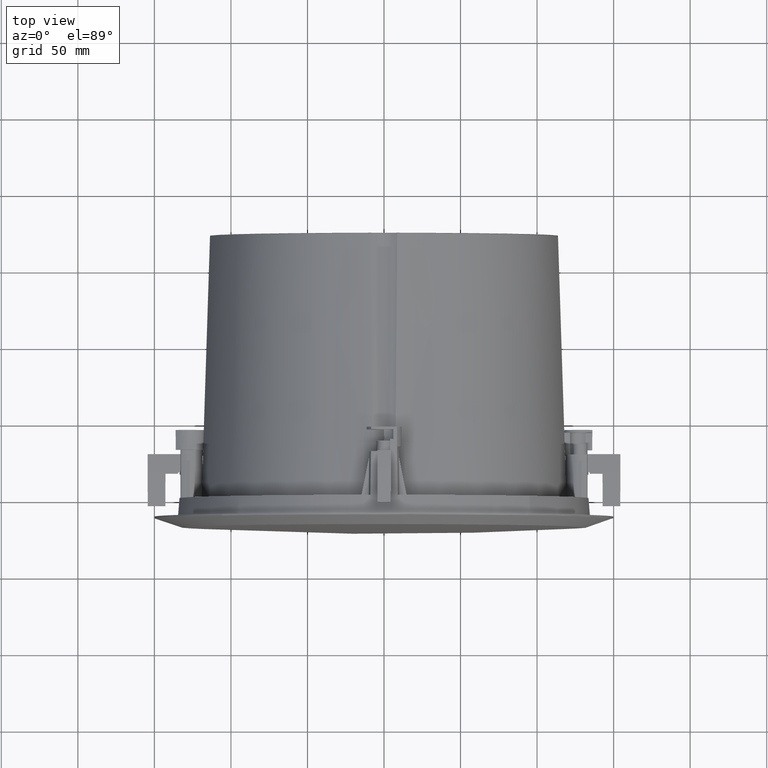
[diagram: clean part render]
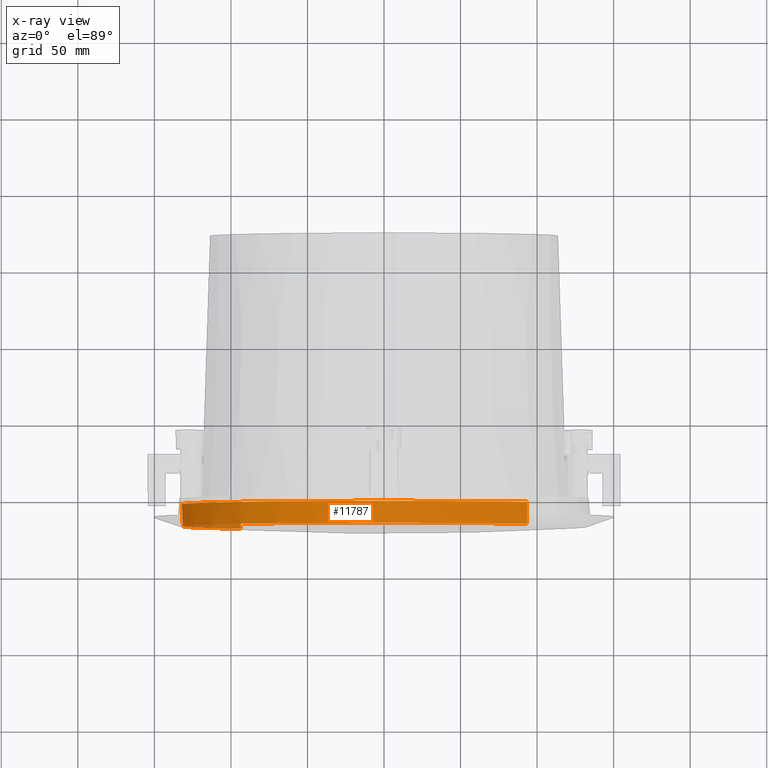
[diagram: x-ray — body ghosted, one internal face saturated and labeled with its STEP entity id]
A machine part, top view, then the same camera in x-ray: the body is ghosted and one INTERNAL B-rep face — a face not visible from any outside direction — is saturated and labeled: STEP entity #11787.
In plain terms, the highlighted conical surface has half-angle 1 deg.
Its self-contained STEP definition (entity closure, byte-faithful):
#697 = CARTESIAN_POINT ( 'NONE',  ( -9.718417500650439001E-15, -18.35651566236838761, -9.718417500650439001E-15 ) ) ;
#1596 = ORIENTED_EDGE ( 'NONE', *, *, #1602, .F. ) ;
#1602 = EDGE_CURVE ( 'NONE', #17102, #19032, #6474, .T. ) ;
#2020 = DIRECTION ( 'NONE',  ( 5.715123890295924756E-16, 1.000000000000000000, -9.577690591101021377E-17 ) ) ;
#2452 = CARTESIAN_POINT ( 'NONE',  ( 93.33809511662465752, -4.000000000000256684, 93.33809511662458647 ) ) ;
#3819 = EDGE_LOOP ( 'NONE', ( #1596, #19225, #17602, #4372 ) ) ;
#4372 = ORIENTED_EDGE ( 'NONE', *, *, #6245, .F. ) ;
#4467 = CONICAL_SURFACE ( 'NONE', #15749, 132.2505939127437102, 0.01745329250000013030 ) ;
#4930 = EDGE_CURVE ( 'NONE', #17102, #16991, #15733, .T. ) ;
#6245 = EDGE_CURVE ( 'NONE', #19032, #18910, #6307, .T. ) ;
#6307 = LINE ( 'NONE', #19025, #20837 ) ;
#6474 = CIRCLE ( 'NONE', #10901, 132.0000000000005116 ) ;
#7329 = DIRECTION ( 'NONE',  ( -0.7071067811865477948, -2.361049704486330590E-16, -0.7071067811865473507 ) ) ;
#7554 = CIRCLE ( 'NONE', #19513, 132.2505939127436250 ) ;
#7715 = DIRECTION ( 'NONE',  ( 0.01234071492572656574, -0.9998476951567393245, 0.01234071492572722147 ) ) ;
#7817 = CARTESIAN_POINT ( 'NONE',  ( 93.51529177164945850, -18.35651566236835563, 93.51529177164937323 ) ) ;
#7885 = DIRECTION ( 'NONE',  ( -0.01234071492572770545, -0.9998476951567393245, -0.01234071492572703238 ) ) ;
#8498 = FACE_OUTER_BOUND ( 'NONE', #3819, .T. ) ;
#10371 = CARTESIAN_POINT ( 'NONE',  ( -93.33809511662465752, -4.000000000000166978, -93.33809511662462910 ) ) ;
#10502 = DIRECTION ( 'NONE',  ( -0.7071067811865476838, -2.496950457845394260E-16, -0.7071067811865473507 ) ) ;
#10901 = AXIS2_PLACEMENT_3D ( 'NONE', #15522, #20657, #10502 ) ;
#11787 = ADVANCED_FACE ( 'NONE', ( #8498 ), #4467, .F. ) ;
#11992 = EDGE_CURVE ( 'NONE', #18910, #16991, #7554, .T. ) ;
#15522 = CARTESIAN_POINT ( 'NONE',  ( -1.166782522732293081E-12, -4.000000000000211386, 8.929144421472885599E-14 ) ) ;
#15733 = LINE ( 'NONE', #7817, #20582 ) ;
#15749 = AXIS2_PLACEMENT_3D ( 'NONE', #697, #20259, #7329 ) ;
#15988 = CARTESIAN_POINT ( 'NONE',  ( -4.897072896774516246E-14, -18.35651566236849774, -2.059799748361222955E-13 ) ) ;
#16991 = VERTEX_POINT ( 'NONE', #18429 ) ;
#17102 = VERTEX_POINT ( 'NONE', #2452 ) ;
#17602 = ORIENTED_EDGE ( 'NONE', *, *, #11992, .F. ) ;
#17988 = CARTESIAN_POINT ( 'NONE',  ( -93.51529177164947271, -18.35651566236845156, -93.51529177164941586 ) ) ;
#18429 = CARTESIAN_POINT ( 'NONE',  ( 93.51529177164945850, -18.35651566236854393, 93.51529177164937323 ) ) ;
#18910 = VERTEX_POINT ( 'NONE', #17988 ) ;
#19025 = CARTESIAN_POINT ( 'NONE',  ( -93.51529177164947271, -18.35651566236841603, -93.51529177164941586 ) ) ;
#19032 = VERTEX_POINT ( 'NONE', #10371 ) ;
#19189 = DIRECTION ( 'NONE',  ( -0.7071067811865479058, 8.394843393729181895E-16, -0.7071067811865473507 ) ) ;
#19225 = ORIENTED_EDGE ( 'NONE', *, *, #4930, .T. ) ;
#19513 = AXIS2_PLACEMENT_3D ( 'NONE', #15988, #2020, #19189 ) ;
#20259 = DIRECTION ( 'NONE',  ( -5.715123890295924756E-16, -1.000000000000000000, 9.577690591101021377E-17 ) ) ;
#20582 = VECTOR ( 'NONE', #7715, 1000.000000000000000 ) ;
#20657 = DIRECTION ( 'NONE',  ( -5.715123890295924756E-16, -1.000000000000000000, 9.577690591101021377E-17 ) ) ;
#20837 = VECTOR ( 'NONE', #7885, 1000.000000000000000 ) ;